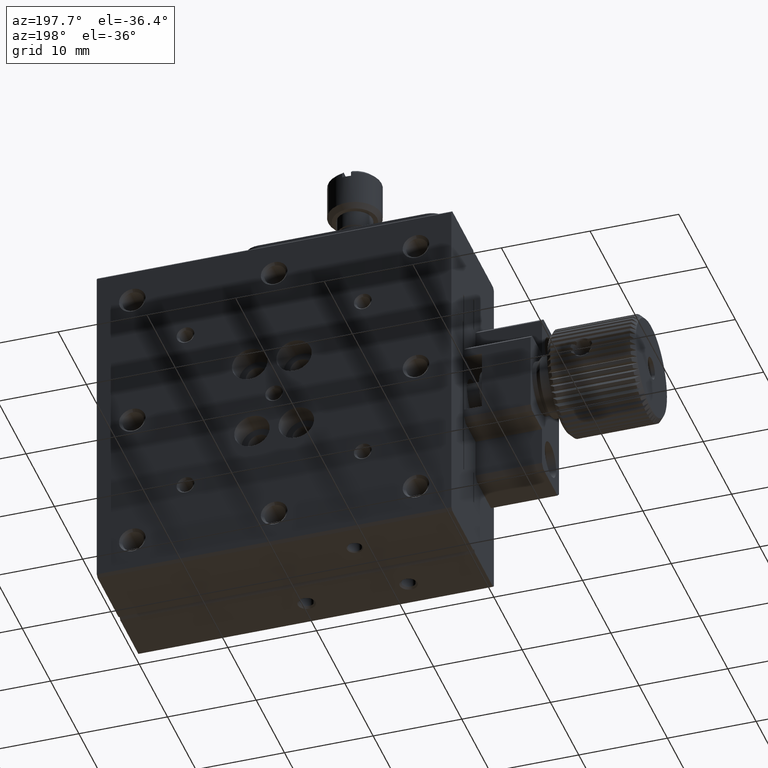
[diagram: clean part render]
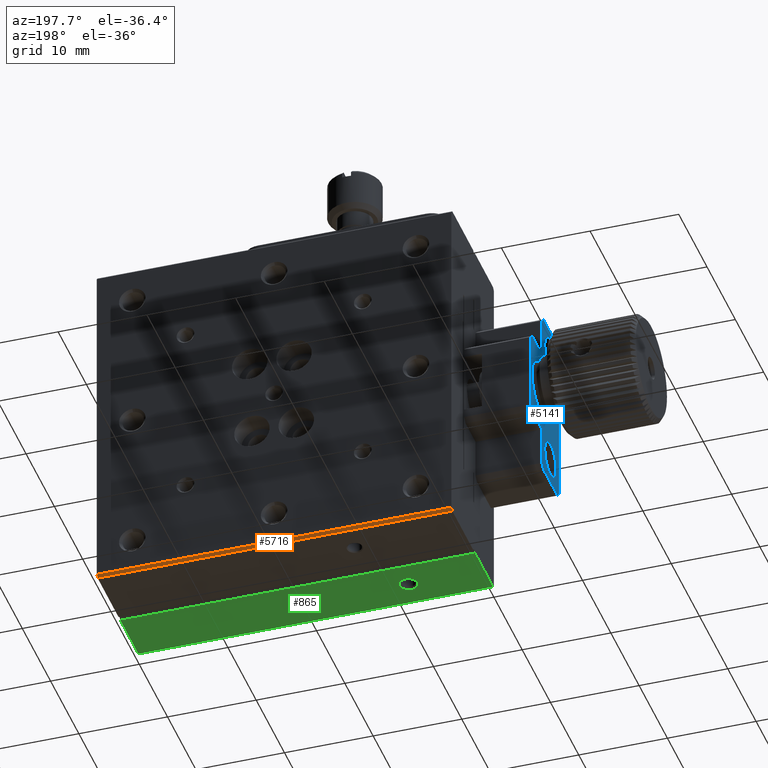
[diagram: same view with three faces highlighted in distinct colors, each labeled with its STEP entity id]
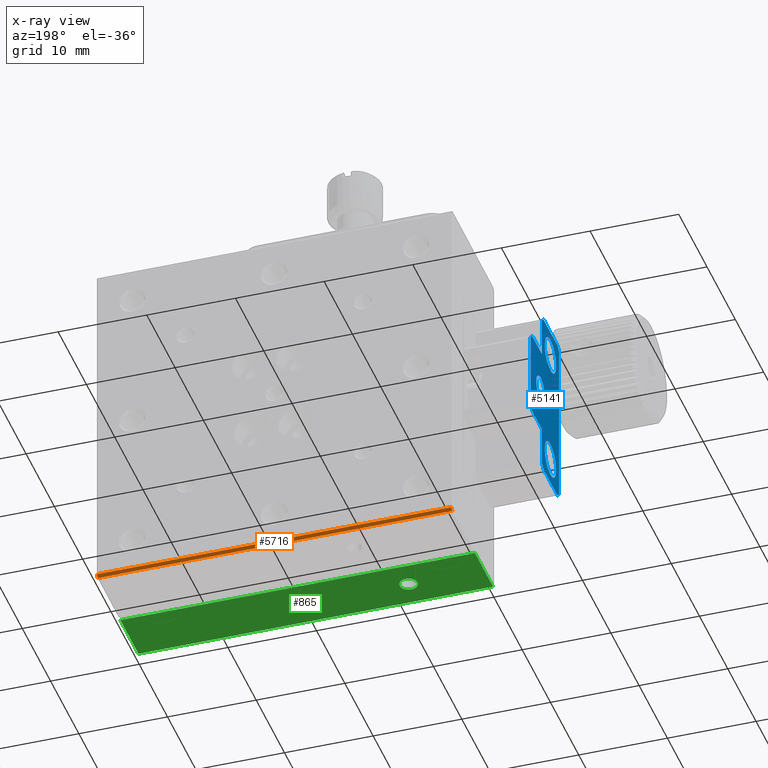
[diagram: x-ray of the same camera — body ghosted, the three highlighted faces saturated]
A machine part, auxiliary view with three faces highlighted in distinct colors.
The next image is the same camera in x-ray (body ghosted, the three faces saturated) — at least one of them is partly hidden behind the body in this view.
Their STEP definitions:

[orange] entity #5716 — the highlighted planar face has unit normal (0, -0.7071, 0.7071).
#608 = EDGE_CURVE ( 'NONE', #8122, #6616, #10219, .T. ) ;
#838 = CARTESIAN_POINT ( 'NONE',  ( 40.00000000000000000, 14.69999999999998153, -40.00000000000000000 ) ) ;
#963 = DIRECTION ( 'NONE',  ( 1.000000000000000000, 0.000000000000000000, 0.000000000000000000 ) ) ;
#1061 = CARTESIAN_POINT ( 'NONE',  ( 40.00000000000000000, 14.69999999999998153, -40.00000000000000000 ) ) ;
#1592 = EDGE_LOOP ( 'NONE', ( #7579, #2579, #9643, #4708 ) ) ;
#2128 = EDGE_CURVE ( 'NONE', #11629, #8122, #2919, .T. ) ;
#2129 = VECTOR ( 'NONE', #10769, 1000.000000000000114 ) ;
#2579 = ORIENTED_EDGE ( 'NONE', *, *, #608, .F. ) ;
#2900 = CARTESIAN_POINT ( 'NONE',  ( 40.00000000000000000, 14.69999999999998153, -40.00000000000000000 ) ) ;
#2919 = LINE ( 'NONE', #838, #4538 ) ;
#2947 = AXIS2_PLACEMENT_3D ( 'NONE', #2900, #11115, #8188 ) ;
#3374 = VECTOR ( 'NONE', #10282, 1000.000000000000114 ) ;
#3956 = CARTESIAN_POINT ( 'NONE',  ( 0.000000000000000000, 14.69999999999998153, -40.00000000000000000 ) ) ;
#4083 = CARTESIAN_POINT ( 'NONE',  ( 0.000000000000000000, 14.99999999999999112, -39.69999999999999574 ) ) ;
#4105 = PLANE ( 'NONE',  #2947 ) ;
#4538 = VECTOR ( 'NONE', #10266, 1000.000000000000000 ) ;
#4708 = ORIENTED_EDGE ( 'NONE', *, *, #12068, .T. ) ;
#5716 = ADVANCED_FACE ( 'NONE', ( #6244 ), #4105, .F. ) ;
#6244 = FACE_OUTER_BOUND ( 'NONE', #1592, .T. ) ;
#6616 = VERTEX_POINT ( 'NONE', #8399 ) ;
#7579 = ORIENTED_EDGE ( 'NONE', *, *, #11344, .T. ) ;
#7769 = LINE ( 'NONE', #8573, #2129 ) ;
#8122 = VERTEX_POINT ( 'NONE', #10264 ) ;
#8188 = DIRECTION ( 'NONE',  ( 0.000000000000000000, -0.7071067811865510144, -0.7071067811865441310 ) ) ;
#8399 = CARTESIAN_POINT ( 'NONE',  ( 40.00000000000000000, 14.99999999999999112, -39.69999999999999574 ) ) ;
#8573 = CARTESIAN_POINT ( 'NONE',  ( 0.000000000000000000, 14.69999999999998153, -40.00000000000000000 ) ) ;
#9643 = ORIENTED_EDGE ( 'NONE', *, *, #2128, .F. ) ;
#10189 = LINE ( 'NONE', #10252, #11708 ) ;
#10219 = LINE ( 'NONE', #1061, #3374 ) ;
#10252 = CARTESIAN_POINT ( 'NONE',  ( 40.00000000000000000, 14.99999999999999467, -39.70000000000000284 ) ) ;
#10264 = CARTESIAN_POINT ( 'NONE',  ( 40.00000000000000000, 14.69999999999998153, -40.00000000000000000 ) ) ;
#10266 = DIRECTION ( 'NONE',  ( 1.000000000000000000, 0.000000000000000000, 0.000000000000000000 ) ) ;
#10282 = DIRECTION ( 'NONE',  ( 0.000000000000000000, 0.7071067811865680008, 0.7071067811865270336 ) ) ;
#10769 = DIRECTION ( 'NONE',  ( 0.000000000000000000, 0.7071067811865680008, 0.7071067811865270336 ) ) ;
#11115 = DIRECTION ( 'NONE',  ( 0.000000000000000000, -0.7071067811865441310, 0.7071067811865510144 ) ) ;
#11344 = EDGE_CURVE ( 'NONE', #12203, #6616, #10189, .T. ) ;
#11629 = VERTEX_POINT ( 'NONE', #3956 ) ;
#11708 = VECTOR ( 'NONE', #963, 1000.000000000000000 ) ;
#12068 = EDGE_CURVE ( 'NONE', #11629, #12203, #7769, .T. ) ;
#12203 = VERTEX_POINT ( 'NONE', #4083 ) ;

[blue] entity #5141 — the highlighted planar face has unit normal (1, 0, 0).
#422 = ORIENTED_EDGE ( 'NONE', *, *, #13068, .F. ) ;
#494 = CARTESIAN_POINT ( 'NONE',  ( -7.500000000000000000, 6.500000000000000888, -10.50000000000000000 ) ) ;
#560 = LINE ( 'NONE', #12876, #1680 ) ;
#568 = EDGE_CURVE ( 'NONE', #1834, #7581, #11023, .T. ) ;
#623 = DIRECTION ( 'NONE',  ( 0.000000000000000000, -0.7071067811865474617, 0.7071067811865474617 ) ) ;
#822 = AXIS2_PLACEMENT_3D ( 'NONE', #6798, #9987, #8676 ) ;
#840 = DIRECTION ( 'NONE',  ( 0.000000000000000000, -1.000000000000000000, -0.000000000000000000 ) ) ;
#1218 = CARTESIAN_POINT ( 'NONE',  ( -7.500000000000000000, 6.000000000000000000, -10.00000000000000000 ) ) ;
#1223 = ORIENTED_EDGE ( 'NONE', *, *, #568, .F. ) ;
#1258 = VERTEX_POINT ( 'NONE', #12926 ) ;
#1449 = CARTESIAN_POINT ( 'NONE',  ( -7.500000000000000000, 1.000000000000000000, -10.00000000000000000 ) ) ;
#1479 = DIRECTION ( 'NONE',  ( 0.000000000000000000, -1.000000000000000000, -0.000000000000000000 ) ) ;
#1567 = VECTOR ( 'NONE', #623, 1000.000000000000114 ) ;
#1617 = EDGE_CURVE ( 'NONE', #4508, #4508, #5622, .T. ) ;
#1648 = FACE_BOUND ( 'NONE', #9383, .T. ) ;
#1660 = CARTESIAN_POINT ( 'NONE',  ( -7.500000000000000000, 3.500000000000000000, -11.05400000000001093 ) ) ;
#1680 = VECTOR ( 'NONE', #11934, 1000.000000000000000 ) ;
#1721 = LINE ( 'NONE', #5810, #1734 ) ;
#1734 = VECTOR ( 'NONE', #840, 1000.000000000000000 ) ;
#1800 = ORIENTED_EDGE ( 'NONE', *, *, #12760, .F. ) ;
#1834 = VERTEX_POINT ( 'NONE', #11148 ) ;
#1972 = ORIENTED_EDGE ( 'NONE', *, *, #2424, .F. ) ;
#1998 = DIRECTION ( 'NONE',  ( 0.000000000000000000, 0.7071067811865496822, -0.7071067811865454633 ) ) ;
#2024 = LINE ( 'NONE', #11050, #2082 ) ;
#2034 = EDGE_LOOP ( 'NONE', ( #3049 ) ) ;
#2059 = CARTESIAN_POINT ( 'NONE',  ( -7.500000000000000000, 6.500000000000000888, -25.00000000000000000 ) ) ;
#2082 = VECTOR ( 'NONE', #5041, 1000.000000000000000 ) ;
#2264 = LINE ( 'NONE', #8486, #7049 ) ;
#2384 = VECTOR ( 'NONE', #1998, 1000.000000000000114 ) ;
#2389 = CARTESIAN_POINT ( 'NONE',  ( -7.500000000000000000, 10.49999999999999822, -24.50000000000000000 ) ) ;
#2424 = EDGE_CURVE ( 'NONE', #7724, #9432, #3579, .T. ) ;
#2471 = ORIENTED_EDGE ( 'NONE', *, *, #7589, .F. ) ;
#2492 = ORIENTED_EDGE ( 'NONE', *, *, #3237, .F. ) ;
#2609 = VECTOR ( 'NONE', #8228, 1000.000000000000000 ) ;
#3002 = CARTESIAN_POINT ( 'NONE',  ( -7.500000000000000000, 6.500000000000000888, -15.00000000000000000 ) ) ;
#3049 = ORIENTED_EDGE ( 'NONE', *, *, #11278, .F. ) ;
#3118 = VERTEX_POINT ( 'NONE', #1449 ) ;
#3129 = VERTEX_POINT ( 'NONE', #7472 ) ;
#3237 = EDGE_CURVE ( 'NONE', #4480, #5835, #1721, .T. ) ;
#3579 = LINE ( 'NONE', #494, #1567 ) ;
#3589 = VERTEX_POINT ( 'NONE', #7394 ) ;
#3608 = VECTOR ( 'NONE', #7884, 1000.000000000000114 ) ;
#3807 = LINE ( 'NONE', #8893, #3608 ) ;
#3859 = DIRECTION ( 'NONE',  ( 0.000000000000000000, 0.000000000000000000, -1.000000000000000000 ) ) ;
#3864 = DIRECTION ( 'NONE',  ( 1.000000000000000000, 0.000000000000000000, 0.000000000000000000 ) ) ;
#3912 = AXIS2_PLACEMENT_3D ( 'NONE', #10940, #3864, #7735 ) ;
#3968 = ORIENTED_EDGE ( 'NONE', *, *, #11256, .F. ) ;
#4446 = CARTESIAN_POINT ( 'NONE',  ( -7.499999999993178790, 7.000000000000000000, -18.50000000001728040 ) ) ;
#4480 = VERTEX_POINT ( 'NONE', #12565 ) ;
#4499 = VECTOR ( 'NONE', #11469, 1000.000000000000114 ) ;
#4508 = VERTEX_POINT ( 'NONE', #4446 ) ;
#4533 = CARTESIAN_POINT ( 'NONE',  ( -7.500000000000000000, 5.999999999999999112, -30.00000000000000000 ) ) ;
#4686 = DIRECTION ( 'NONE',  ( 0.000000000000000000, 0.000000000000000000, 1.000000000000000000 ) ) ;
#4753 = DIRECTION ( 'NONE',  ( 0.000000000000000000, -0.7071067811865474617, 0.7071067811865474617 ) ) ;
#4858 = PLANE ( 'NONE',  #3912 ) ;
#4926 = FACE_BOUND ( 'NONE', #9009, .T. ) ;
#5041 = DIRECTION ( 'NONE',  ( 0.000000000000000000, -0.000000000000000000, -1.000000000000000000 ) ) ;
#5141 = ADVANCED_FACE ( 'NONE', ( #6667, #1648, #9868, #4926 ), #4858, .F. ) ;
#5270 = LINE ( 'NONE', #8281, #4499 ) ;
#5355 = AXIS2_PLACEMENT_3D ( 'NONE', #5924, #12127, #3859 ) ;
#5524 = ORIENTED_EDGE ( 'NONE', *, *, #7009, .F. ) ;
#5622 = CIRCLE ( 'NONE', #10739, 1.499999999982720045 ) ;
#5637 = EDGE_CURVE ( 'NONE', #3129, #9545, #2024, .T. ) ;
#5688 = LINE ( 'NONE', #7762, #12025 ) ;
#5810 = CARTESIAN_POINT ( 'NONE',  ( -7.500000000000000000, 10.00000000000000000, -15.00000000000000000 ) ) ;
#5835 = VERTEX_POINT ( 'NONE', #7434 ) ;
#5922 = CARTESIAN_POINT ( 'NONE',  ( -7.500000000000000000, 1.000000000000000222, -30.00000000000000000 ) ) ;
#5924 = CARTESIAN_POINT ( 'NONE',  ( -7.500000000000000000, 3.500000000000000000, -26.94600000000000151 ) ) ;
#6091 = LINE ( 'NONE', #10157, #2384 ) ;
#6208 = ORIENTED_EDGE ( 'NONE', *, *, #6785, .F. ) ;
#6283 = CARTESIAN_POINT ( 'NONE',  ( -7.500000000000000000, 6.000000000000000000, -10.00000000000000000 ) ) ;
#6287 = DIRECTION ( 'NONE',  ( 0.000000000000000000, -0.7071067811865472397, -0.7071067811865479058 ) ) ;
#6547 = DIRECTION ( 'NONE',  ( 0.000000000000000000, -0.000000000000000000, 1.000000000000000000 ) ) ;
#6599 = CIRCLE ( 'NONE', #822, 1.999999999999989564 ) ;
#6667 = FACE_OUTER_BOUND ( 'NONE', #8508, .T. ) ;
#6785 = EDGE_CURVE ( 'NONE', #11258, #7951, #13183, .T. ) ;
#6798 = CARTESIAN_POINT ( 'NONE',  ( -7.500000000000000000, 3.500000000000000000, -13.05400000000000205 ) ) ;
#6884 = CARTESIAN_POINT ( 'NONE',  ( -7.500000000000000000, 3.500000000000000000, -28.94599999999999085 ) ) ;
#6959 = CARTESIAN_POINT ( 'NONE',  ( -7.499999999993178790, 7.000000000000000000, -20.00000000000000000 ) ) ;
#7009 = EDGE_CURVE ( 'NONE', #9432, #3118, #12585, .T. ) ;
#7016 = DIRECTION ( 'NONE',  ( 0.000000000000000000, 1.000000000000000000, 0.000000000000000000 ) ) ;
#7049 = VECTOR ( 'NONE', #6287, 999.9999999999998863 ) ;
#7394 = CARTESIAN_POINT ( 'NONE',  ( -7.500000000000000000, 0.4999999999999995559, -29.50000000000000355 ) ) ;
#7434 = CARTESIAN_POINT ( 'NONE',  ( -7.500000000000000000, 6.500000000000000888, -15.00000000000000000 ) ) ;
#7472 = CARTESIAN_POINT ( 'NONE',  ( -7.500000000000000000, 10.50000000000000178, -15.50000000000000000 ) ) ;
#7581 = VERTEX_POINT ( 'NONE', #9761 ) ;
#7589 = EDGE_CURVE ( 'NONE', #3129, #4480, #5688, .T. ) ;
#7724 = VERTEX_POINT ( 'NONE', #11407 ) ;
#7735 = DIRECTION ( 'NONE',  ( 0.000000000000000000, 0.000000000000000000, -1.000000000000000000 ) ) ;
#7762 = CARTESIAN_POINT ( 'NONE',  ( -7.500000000000000000, 10.50000000000000000, -15.50000000000000000 ) ) ;
#7884 = DIRECTION ( 'NONE',  ( 0.000000000000000000, 0.7071067811865474617, 0.7071067811865474617 ) ) ;
#7951 = VERTEX_POINT ( 'NONE', #4533 ) ;
#7995 = VECTOR ( 'NONE', #12317, 1000.000000000000000 ) ;
#8029 = LINE ( 'NONE', #3002, #2609 ) ;
#8228 = DIRECTION ( 'NONE',  ( 0.000000000000000000, -0.000000000000000000, 1.000000000000000000 ) ) ;
#8281 = CARTESIAN_POINT ( 'NONE',  ( -7.500000000000000000, 6.000000000000000000, -30.00000000000000000 ) ) ;
#8486 = CARTESIAN_POINT ( 'NONE',  ( -7.500000000000000000, 1.000000000000000000, -10.00000000000000000 ) ) ;
#8508 = EDGE_LOOP ( 'NONE', ( #1972, #11665, #2492, #2471, #11093, #10401, #1223, #12910, #1800, #6208, #9203, #3968, #12330, #5524 ) ) ;
#8512 = VECTOR ( 'NONE', #6547, 1000.000000000000000 ) ;
#8555 = VERTEX_POINT ( 'NONE', #1660 ) ;
#8626 = CARTESIAN_POINT ( 'NONE',  ( -7.500000000000000000, 6.500000000000000888, -29.50000000000000355 ) ) ;
#8676 = DIRECTION ( 'NONE',  ( 0.000000000000000000, 0.000000000000000000, 1.000000000000000000 ) ) ;
#8690 = LINE ( 'NONE', #8626, #8512 ) ;
#8893 = CARTESIAN_POINT ( 'NONE',  ( -7.500000000000000000, 10.00000000000000000, -25.00000000000000000 ) ) ;
#9009 = EDGE_LOOP ( 'NONE', ( #422 ) ) ;
#9032 = CARTESIAN_POINT ( 'NONE',  ( -7.500000000000000000, 6.500000000000000888, -29.50000000000000355 ) ) ;
#9154 = VECTOR ( 'NONE', #7016, 1000.000000000000000 ) ;
#9203 = ORIENTED_EDGE ( 'NONE', *, *, #9405, .F. ) ;
#9293 = VERTEX_POINT ( 'NONE', #9032 ) ;
#9383 = EDGE_LOOP ( 'NONE', ( #10772 ) ) ;
#9393 = EDGE_CURVE ( 'NONE', #5835, #7724, #8029, .T. ) ;
#9405 = EDGE_CURVE ( 'NONE', #3589, #11258, #6091, .T. ) ;
#9421 = CIRCLE ( 'NONE', #5355, 1.999999999999991340 ) ;
#9432 = VERTEX_POINT ( 'NONE', #6283 ) ;
#9545 = VERTEX_POINT ( 'NONE', #2389 ) ;
#9761 = CARTESIAN_POINT ( 'NONE',  ( -7.500000000000000000, 10.00000000000000178, -25.00000000000000000 ) ) ;
#9868 = FACE_BOUND ( 'NONE', #2034, .T. ) ;
#9895 = DIRECTION ( 'NONE',  ( -1.000000000000000000, 0.000000000000000000, 0.000000000000000000 ) ) ;
#9987 = DIRECTION ( 'NONE',  ( -1.000000000000000000, 0.000000000000000000, 0.000000000000000000 ) ) ;
#10157 = CARTESIAN_POINT ( 'NONE',  ( -7.500000000000000000, 0.5000000000000000000, -29.50000000000000355 ) ) ;
#10332 = VECTOR ( 'NONE', #1479, 1000.000000000000000 ) ;
#10401 = ORIENTED_EDGE ( 'NONE', *, *, #10865, .F. ) ;
#10695 = EDGE_CURVE ( 'NONE', #9293, #1834, #8690, .T. ) ;
#10739 = AXIS2_PLACEMENT_3D ( 'NONE', #6959, #9895, #4686 ) ;
#10772 = ORIENTED_EDGE ( 'NONE', *, *, #1617, .F. ) ;
#10865 = EDGE_CURVE ( 'NONE', #7581, #9545, #3807, .T. ) ;
#10940 = CARTESIAN_POINT ( 'NONE',  ( -7.500000000000000000, 0.000000000000000000, 0.000000000000000000 ) ) ;
#11023 = LINE ( 'NONE', #2059, #9154 ) ;
#11050 = CARTESIAN_POINT ( 'NONE',  ( -7.500000000000000000, 10.50000000000000000, -31.51999999999999957 ) ) ;
#11093 = ORIENTED_EDGE ( 'NONE', *, *, #5637, .T. ) ;
#11148 = CARTESIAN_POINT ( 'NONE',  ( -7.500000000000000000, 6.500000000000000888, -25.00000000000000000 ) ) ;
#11215 = VERTEX_POINT ( 'NONE', #6884 ) ;
#11256 = EDGE_CURVE ( 'NONE', #1258, #3589, #560, .T. ) ;
#11258 = VERTEX_POINT ( 'NONE', #5922 ) ;
#11278 = EDGE_CURVE ( 'NONE', #8555, #8555, #6599, .T. ) ;
#11407 = CARTESIAN_POINT ( 'NONE',  ( -7.500000000000000000, 6.500000000000000888, -10.50000000000000178 ) ) ;
#11469 = DIRECTION ( 'NONE',  ( 0.000000000000000000, 0.7071067811865500152, 0.7071067811865451302 ) ) ;
#11665 = ORIENTED_EDGE ( 'NONE', *, *, #9393, .F. ) ;
#11934 = DIRECTION ( 'NONE',  ( 0.000000000000000000, -0.000000000000000000, -1.000000000000000000 ) ) ;
#12025 = VECTOR ( 'NONE', #4753, 1000.000000000000114 ) ;
#12127 = DIRECTION ( 'NONE',  ( -1.000000000000000000, -0.000000000000000000, -0.000000000000000000 ) ) ;
#12317 = DIRECTION ( 'NONE',  ( 0.000000000000000000, 1.000000000000000000, 0.000000000000000000 ) ) ;
#12330 = ORIENTED_EDGE ( 'NONE', *, *, #12405, .F. ) ;
#12383 = CARTESIAN_POINT ( 'NONE',  ( -7.500000000000000000, 1.000000000000000000, -30.00000000000000000 ) ) ;
#12405 = EDGE_CURVE ( 'NONE', #3118, #1258, #2264, .T. ) ;
#12565 = CARTESIAN_POINT ( 'NONE',  ( -7.500000000000000000, 10.00000000000000000, -15.00000000000000000 ) ) ;
#12585 = LINE ( 'NONE', #1218, #10332 ) ;
#12760 = EDGE_CURVE ( 'NONE', #7951, #9293, #5270, .T. ) ;
#12876 = CARTESIAN_POINT ( 'NONE',  ( -7.500000000000000000, 0.5000000000000000000, -10.50000000000000000 ) ) ;
#12910 = ORIENTED_EDGE ( 'NONE', *, *, #10695, .F. ) ;
#12926 = CARTESIAN_POINT ( 'NONE',  ( -7.500000000000000000, 0.5000000000000002220, -10.50000000000000000 ) ) ;
#13068 = EDGE_CURVE ( 'NONE', #11215, #11215, #9421, .T. ) ;
#13183 = LINE ( 'NONE', #12383, #7995 ) ;

[green] entity #865 — the highlighted planar face has unit normal (0, 0, 1).
#115 = CARTESIAN_POINT ( 'NONE',  ( 19.00000000006230039, 3.500000000000000000, -39.99999999996362021 ) ) ;
#379 = CIRCLE ( 'NONE', #7878, 1.000000000006821876 ) ;
#614 = EDGE_LOOP ( 'NONE', ( #9531 ) ) ;
#820 = FACE_OUTER_BOUND ( 'NONE', #8125, .T. ) ;
#865 = ADVANCED_FACE ( 'NONE', ( #820, #13058, #6980 ), #11051, .F. ) ;
#983 = VERTEX_POINT ( 'NONE', #7240 ) ;
#1021 = DIRECTION ( 'NONE',  ( 0.000000000000000000, 0.000000000000000000, -1.000000000000000000 ) ) ;
#1137 = VERTEX_POINT ( 'NONE', #115 ) ;
#1233 = LINE ( 'NONE', #3380, #5823 ) ;
#1442 = AXIS2_PLACEMENT_3D ( 'NONE', #10320, #1021, #5369 ) ;
#1523 = AXIS2_PLACEMENT_3D ( 'NONE', #1894, #8051, #12118 ) ;
#1894 = CARTESIAN_POINT ( 'NONE',  ( 40.00000000000000000, 0.3000000000000109801, -40.00000000000000000 ) ) ;
#1913 = CARTESIAN_POINT ( 'NONE',  ( 40.00000000000000000, 0.3000000000000093703, -40.00000000000000711 ) ) ;
#2091 = LINE ( 'NONE', #10047, #9065 ) ;
#2181 = VERTEX_POINT ( 'NONE', #1913 ) ;
#2308 = DIRECTION ( 'NONE',  ( -0.000000000000000000, 1.000000000000000000, 0.000000000000000000 ) ) ;
#2334 = EDGE_CURVE ( 'NONE', #983, #11723, #1233, .T. ) ;
#3380 = CARTESIAN_POINT ( 'NONE',  ( 0.000000000000000000, 0.000000000000000000, -40.00000000000000000 ) ) ;
#3508 = ORIENTED_EDGE ( 'NONE', *, *, #8548, .F. ) ;
#3638 = EDGE_LOOP ( 'NONE', ( #3508 ) ) ;
#3964 = DIRECTION ( 'NONE',  ( 0.000000000000000000, 0.000000000000000000, -1.000000000000000000 ) ) ;
#4360 = CARTESIAN_POINT ( 'NONE',  ( 7.499999999993178790, 3.500000000000000000, -40.00000000002046363 ) ) ;
#4541 = VERTEX_POINT ( 'NONE', #4616 ) ;
#4616 = CARTESIAN_POINT ( 'NONE',  ( 40.00000000000000000, 6.700000000000020606, -40.00000000000000000 ) ) ;
#5369 = DIRECTION ( 'NONE',  ( -1.000000000000000000, 0.000000000000000000, 0.000000000000000000 ) ) ;
#5371 = ORIENTED_EDGE ( 'NONE', *, *, #9138, .F. ) ;
#5621 = DIRECTION ( 'NONE',  ( -0.000000000000000000, 1.000000000000000000, 0.000000000000000000 ) ) ;
#5823 = VECTOR ( 'NONE', #2308, 1000.000000000000000 ) ;
#5985 = CARTESIAN_POINT ( 'NONE',  ( 40.00000000000000000, 0.3000000000000044853, -40.00000000000000711 ) ) ;
#6358 = CARTESIAN_POINT ( 'NONE',  ( 40.00000000000000000, 0.000000000000000000, -40.00000000000000000 ) ) ;
#6424 = LINE ( 'NONE', #6358, #6821 ) ;
#6662 = ORIENTED_EDGE ( 'NONE', *, *, #6868, .F. ) ;
#6821 = VECTOR ( 'NONE', #5621, 1000.000000000000000 ) ;
#6868 = EDGE_CURVE ( 'NONE', #4541, #11723, #2091, .T. ) ;
#6980 = FACE_BOUND ( 'NONE', #3638, .T. ) ;
#6985 = LINE ( 'NONE', #5985, #10292 ) ;
#7240 = CARTESIAN_POINT ( 'NONE',  ( 0.000000000000000000, 0.3000000000000077049, -40.00000000000000711 ) ) ;
#7878 = AXIS2_PLACEMENT_3D ( 'NONE', #13114, #3964, #8042 ) ;
#8042 = DIRECTION ( 'NONE',  ( -1.000000000000000000, 0.000000000000000000, 0.000000000000000000 ) ) ;
#8051 = DIRECTION ( 'NONE',  ( 0.000000000000000000, 0.000000000000000000, 1.000000000000000000 ) ) ;
#8125 = EDGE_LOOP ( 'NONE', ( #6662, #5371, #11034, #10055 ) ) ;
#8548 = EDGE_CURVE ( 'NONE', #1137, #1137, #11487, .T. ) ;
#8917 = EDGE_CURVE ( 'NONE', #10359, #10359, #379, .T. ) ;
#9065 = VECTOR ( 'NONE', #12186, 1000.000000000000000 ) ;
#9113 = CARTESIAN_POINT ( 'NONE',  ( 0.000000000000000000, 6.700000000000020606, -40.00000000000000000 ) ) ;
#9138 = EDGE_CURVE ( 'NONE', #2181, #4541, #6424, .T. ) ;
#9531 = ORIENTED_EDGE ( 'NONE', *, *, #8917, .F. ) ;
#9576 = EDGE_CURVE ( 'NONE', #2181, #983, #6985, .T. ) ;
#10047 = CARTESIAN_POINT ( 'NONE',  ( 40.00000000000000000, 6.700000000000020606, -40.00000000000000000 ) ) ;
#10055 = ORIENTED_EDGE ( 'NONE', *, *, #2334, .T. ) ;
#10292 = VECTOR ( 'NONE', #12753, 1000.000000000000000 ) ;
#10320 = CARTESIAN_POINT ( 'NONE',  ( 20.00000000000000000, 3.500000000000000000, -39.99999999996362021 ) ) ;
#10359 = VERTEX_POINT ( 'NONE', #4360 ) ;
#11034 = ORIENTED_EDGE ( 'NONE', *, *, #9576, .T. ) ;
#11051 = PLANE ( 'NONE',  #1523 ) ;
#11487 = CIRCLE ( 'NONE', #1442, 0.9999999999377000570 ) ;
#11723 = VERTEX_POINT ( 'NONE', #9113 ) ;
#12118 = DIRECTION ( 'NONE',  ( 1.000000000000000000, 0.000000000000000000, -0.000000000000000000 ) ) ;
#12186 = DIRECTION ( 'NONE',  ( -1.000000000000000000, -0.000000000000000000, 0.000000000000000000 ) ) ;
#12753 = DIRECTION ( 'NONE',  ( -1.000000000000000000, -0.000000000000000000, 0.000000000000000000 ) ) ;
#13058 = FACE_BOUND ( 'NONE', #614, .T. ) ;
#13114 = CARTESIAN_POINT ( 'NONE',  ( 8.500000000000000000, 3.500000000000000000, -40.00000000002046363 ) ) ;